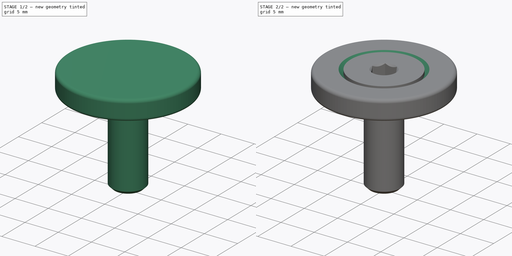
[diagram: build sequence overview — one tinted view per stage of 2, left to right]
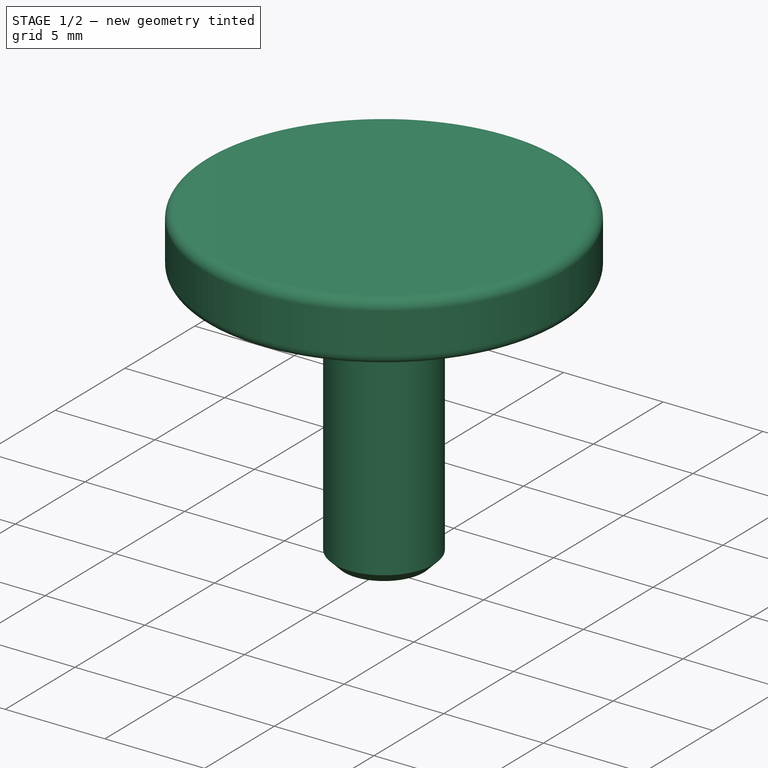
[diagram: stage 1 of 2 — iso view after this stage's code; geometry added in this stage tinted green]
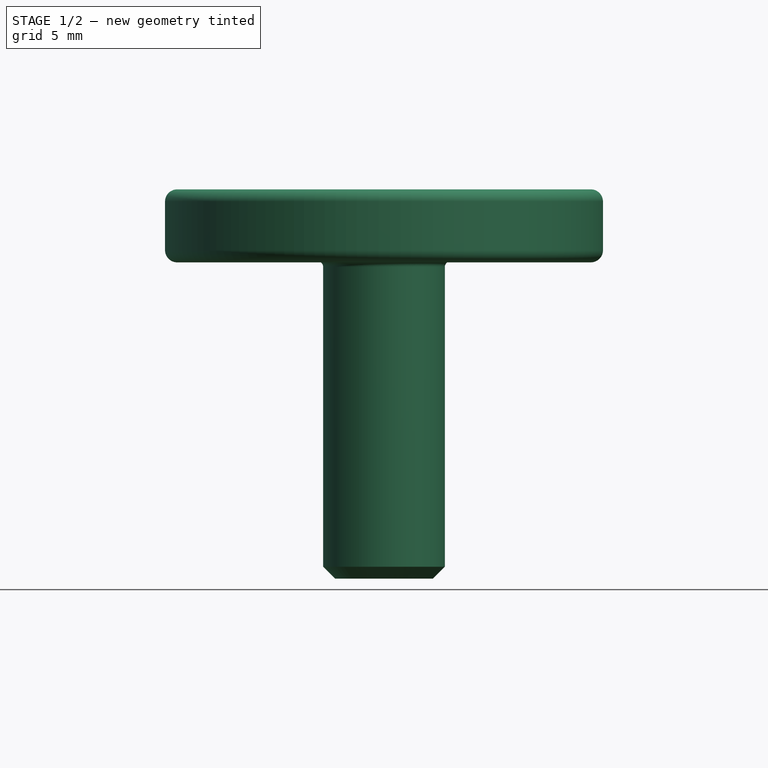
[diagram: stage 1 of 2 — front view after this stage's code; geometry added in this stage tinted green]
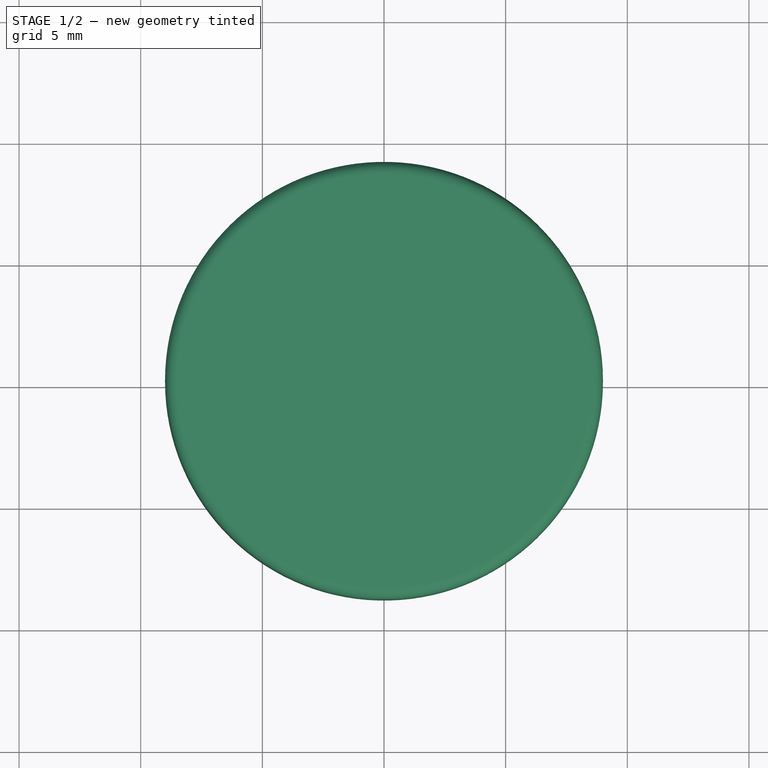
[diagram: stage 1 of 2 — top view after this stage's code; geometry added in this stage tinted green]
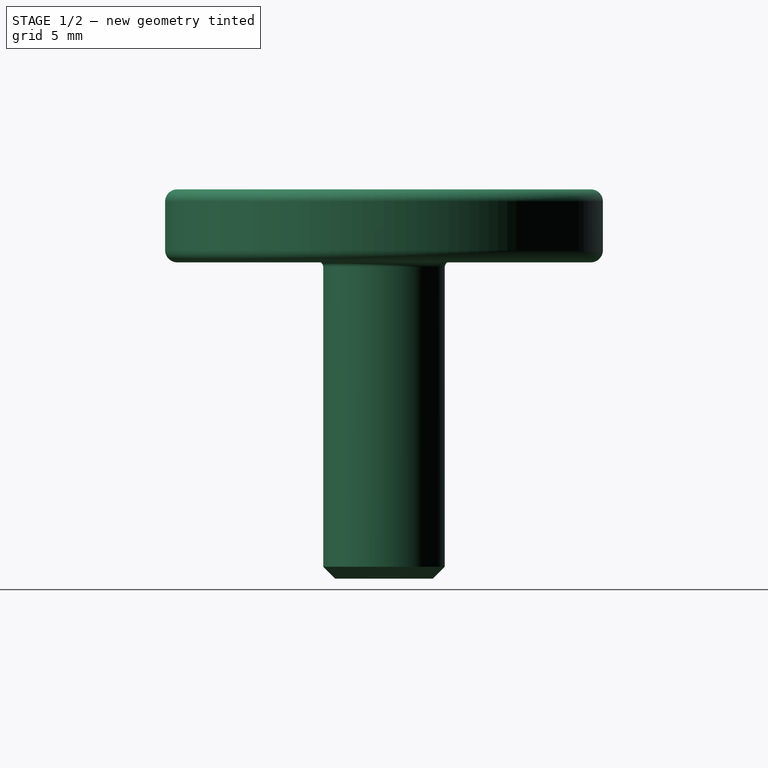
[diagram: stage 1 of 2 — right view after this stage's code; geometry added in this stage tinted green]
FCSTD DOCUMENT  (FreeCAD 0.20R29177 +426 (Git))
Label: BreakawayMagnet
License: All rights reserved
LicenseURL: http://en.wikipedia.org/wiki/All_rights_reserved
objects: App::DocumentObjectGroup×3, Sketcher::SketchObject×2, PartDesign::CoordinateSystem×1, App::FeaturePython×1, PartDesign::Revolution×1, PartDesign::Hole×1, PartDesign::Body×1, Part::FeaturePython×1, App::Part×1
note: 9 computed .brp shape members not serialized (recipe doc carries the construction recipe); baked Part::Feature solids carry a one-line shape summary decoded from their .brp

FEATURE [App::DocumentObjectGroup] Parts
FEATURE [PartDesign::CoordinateSystem] LCS_Origin
  AttacherType = Attacher::AttachEngine3D
  MapMode = 2
  Support = -> [X_Axis]
FEATURE [App::FeaturePython] Variables  # WARN: FeaturePython — macro-defined, semantics opaque (R4)
  Type = App::PropertyContainer
FEATURE [App::DocumentObjectGroup] Constraints
FEATURE [App::DocumentObjectGroup] Configurations
FEATURE [Sketcher::SketchObject] Sketch
  FullyConstrained = true
  MapMode = 5
  Placement = pos=(0,0,0) rot=(1,0,0;1.5708rad)
  Support = -> [XZ_Plane001]
  sketch-geometry (8):
    g0: LineSegment StartX=0 StartY=3 StartZ=0 EndX=8.5 EndY=3 EndZ=0
    g1: ArcOfCircle CenterX=8.5 CenterY=2.5 CenterZ=0 NormalX=0 NormalY=0 NormalZ=1 AngleXU=0 Radius=0.5 StartAngle=4.57e-14 EndAngle=1.5708
    g2: LineSegment StartX=9 StartY=2.5 StartZ=0 EndX=9 EndY=0.5 EndZ=0
    g3: ArcOfCircle CenterX=8.5 CenterY=0.5 CenterZ=0 NormalX=0 NormalY=0 NormalZ=1 AngleXU=0 Radius=0.5 StartAngle=4.71239 EndAngle=6.28319
    g4: LineSegment StartX=8.5 StartY=1e-16 StartZ=0 EndX=0 EndY=1e-16 EndZ=0
    g5: LineSegment StartX=0 StartY=1e-16 StartZ=0 EndX=0 EndY=3 EndZ=0
    g6: GeomPoint X=0 Y=3 Z=0
    g7: GeomPoint X=9 Y=0 Z=0
  constraints (19):
    c: Tangent(g0,g1) = 1.5708
    c: Tangent(g1,g2) = 1.5708
    c: Tangent(g2,g3) = 1.5708
    c: Tangent(g3,g4) = 1.5708
    c: Horizontal(g0)
    c: Horizontal(g4)
    c: Vertical(g2)
    c: Vertical(g5)
    c: Equal(g1,g3)
    c: PointOnObject(g6,g0)
    c: PointOnObject(g6,g5)
    c: PointOnObject(g7,g2)
    c: PointOnObject(g7,g4)
    c: Coincident(g5,g4)
    c: Coincident(g5,g0)
    c: Radius(g1) = 0.5
    c: DistanceY(g5,g5) = 3  'Height'
    c: DistanceX(g-1,g1) = 9
    c: Coincident(g4,g-1)
FEATURE [PartDesign::Revolution] Revolution
  Angle = 360
  Axis = (0,2e-16,1)
  Base = (0,0,0)
  Placement = pos=(0,0,0) rot=(1,0,0;1.5708rad)
  Profile = -> Sketch
  ReferenceAxis = -> Sketch [V_Axis]
  Reversed = true
FEATURE [PartDesign::Body] Body
  Group = -> [Sketch,Revolution,Sketch001,Hole]
  Origin = -> Origin001
  Tip = -> Hole
FEATURE [Part::FeaturePython] Screw  label="M5x16-Screw"  # Fasteners workbench fastener (typed FeaturePython)
  Placement = pos=(0,0,3) rot=(0,0,1;0rad)
  baseObject = -> Sketch001 [Edge1]
  diameter = 5
  invert = false
  leftHanded = false
  length = 3
  lengthCustom = 16
  matchOuter = false
  offset = 0
  thread = false
  type = 18
FEATURE [App::Part] Assembly
  AssemblyType = Part::Link
  Group = -> [LCS_Origin,Variables,Constraints,Configurations,Body,Screw]
  Origin = -> Origin
  Type = Assembly
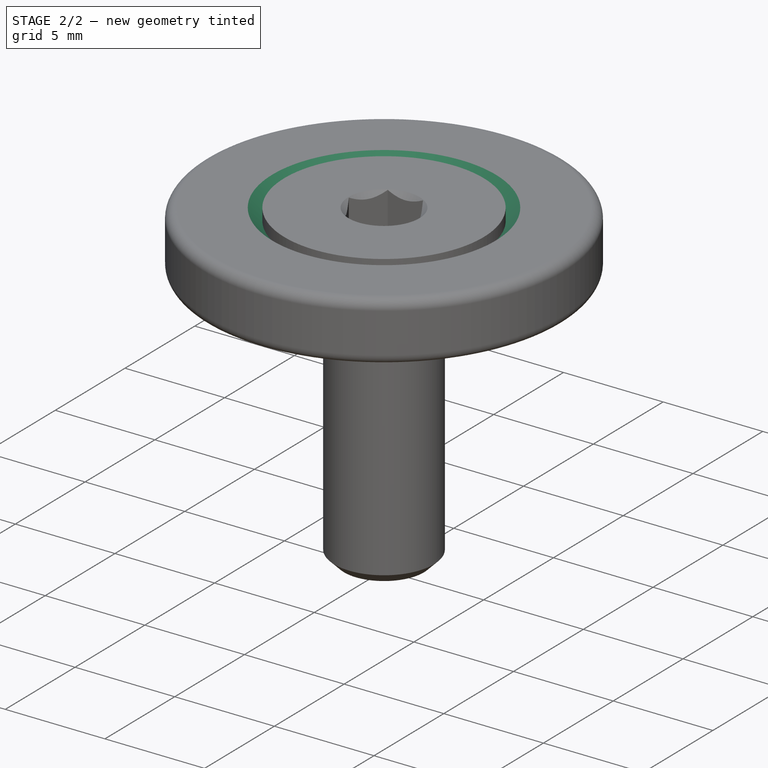
[diagram: stage 2 of 2 — iso view after this stage's code; geometry added in this stage tinted green]
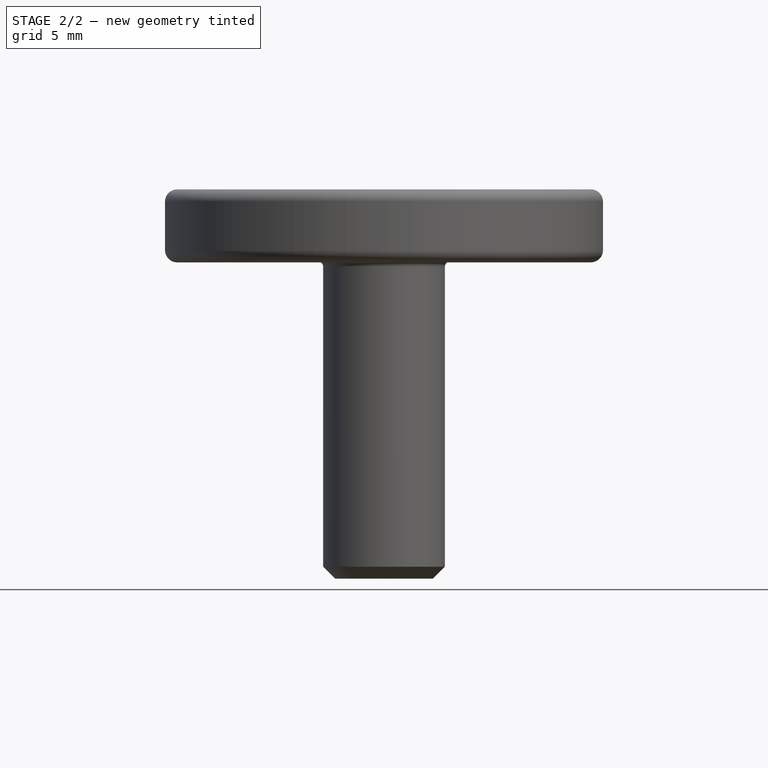
[diagram: stage 2 of 2 — front view after this stage's code; geometry added in this stage tinted green]
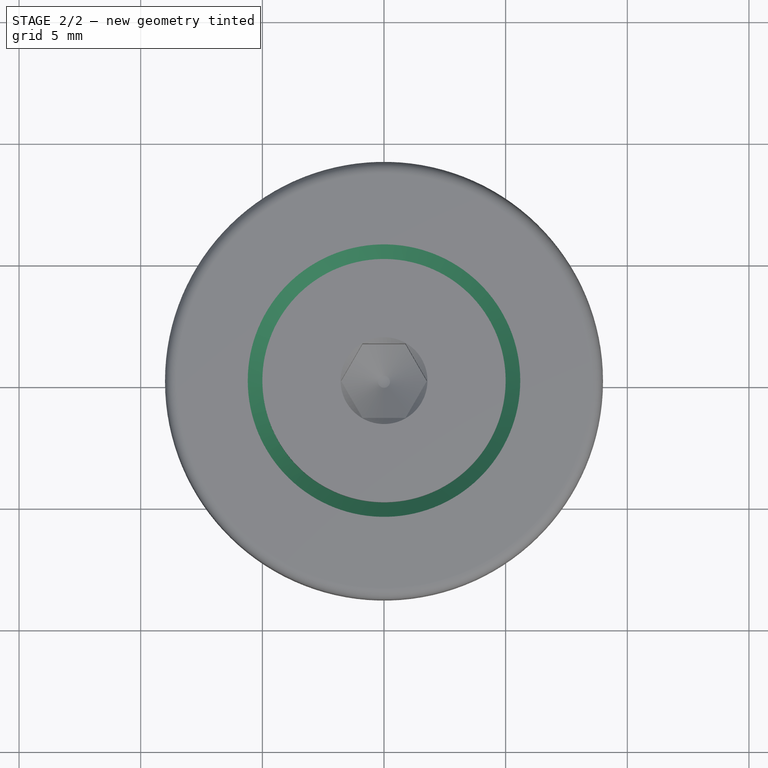
[diagram: stage 2 of 2 — top view after this stage's code; geometry added in this stage tinted green]
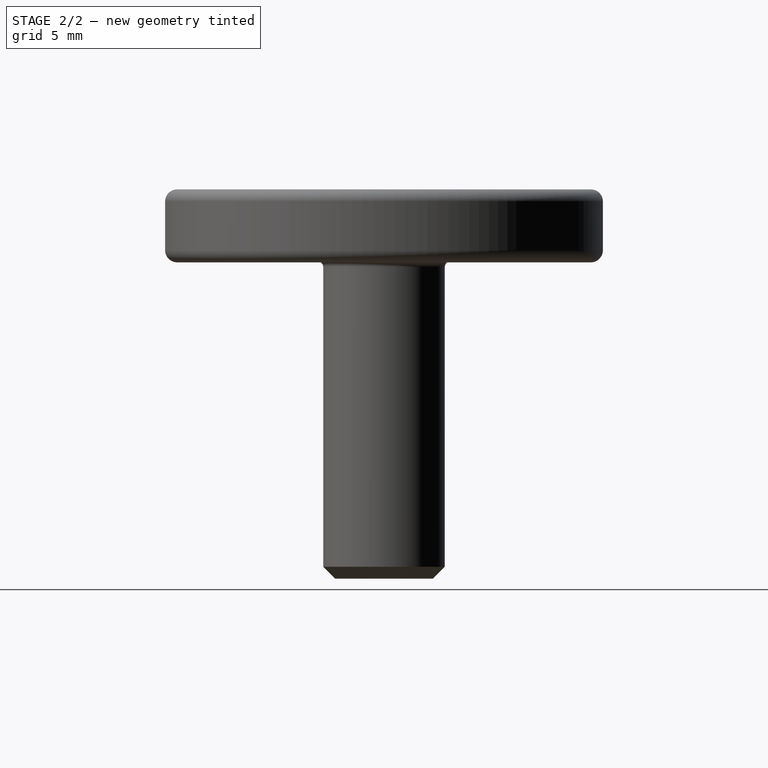
[diagram: stage 2 of 2 — right view after this stage's code; geometry added in this stage tinted green]
FEATURE [Sketcher::SketchObject] Sketch001
  AttachmentOffset = pos=(0,0,3) rot=(0,0,1;0rad)
  FullyConstrained = true
  MapMode = 5
  Placement = pos=(0,0,3) rot=(0,0,1;0rad)
  Support = -> [XY_Plane001]
  expr: .AttachmentOffset.Base.z = <<Sketch>>.Constraints.Height
  sketch-geometry (1):
    g0: Circle CenterX=0 CenterY=0 CenterZ=0 NormalX=0 NormalY=0 NormalZ=1 AngleXU=0 Radius=1
  constraints (2):
    c: Coincident(g0,g-1)
    c: Diameter(g0) = 2
FEATURE [PartDesign::Hole] Hole  label="MountHole"
  BaseFeature = -> Revolution
  CustomThreadClearance = 0
  Depth = 51.7403
  DepthType = 1
  Diameter = 5.5
  DrillForDepth = false
  DrillPoint = 1
  DrillPointAngle = 118
  HoleCutCountersinkAngle = 90
  HoleCutCustomValues = false
  HoleCutDepth = 3.5
  HoleCutDiameter = 12.2
  HoleCutType = 7
  ModelThread = false
  Placement = pos=(0,0,0) rot=(1,0,0;1.5708rad)
  Profile = -> Sketch001
  Tapered = false
  TaperedAngle = 90
  ThreadClass = 0
  ThreadDepth = 51.7403
  ThreadDepthType = 0
  ThreadDirection = 0
  ThreadFit = 0
  ThreadSize = 13
  ThreadType = 1
  Threaded = false
  UseCustomThreadClearance = false
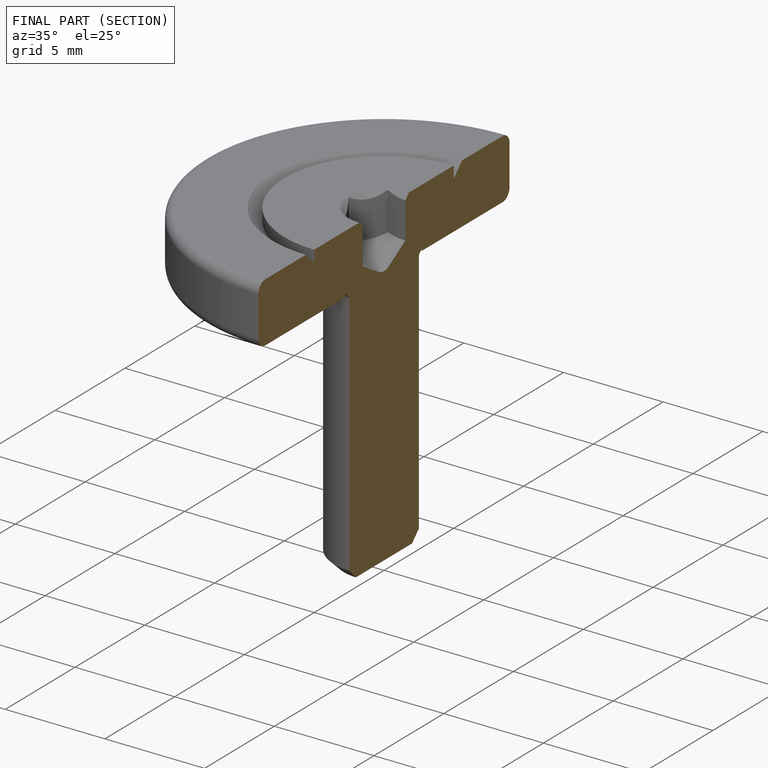
[diagram: finished part — half-section view (interior)]
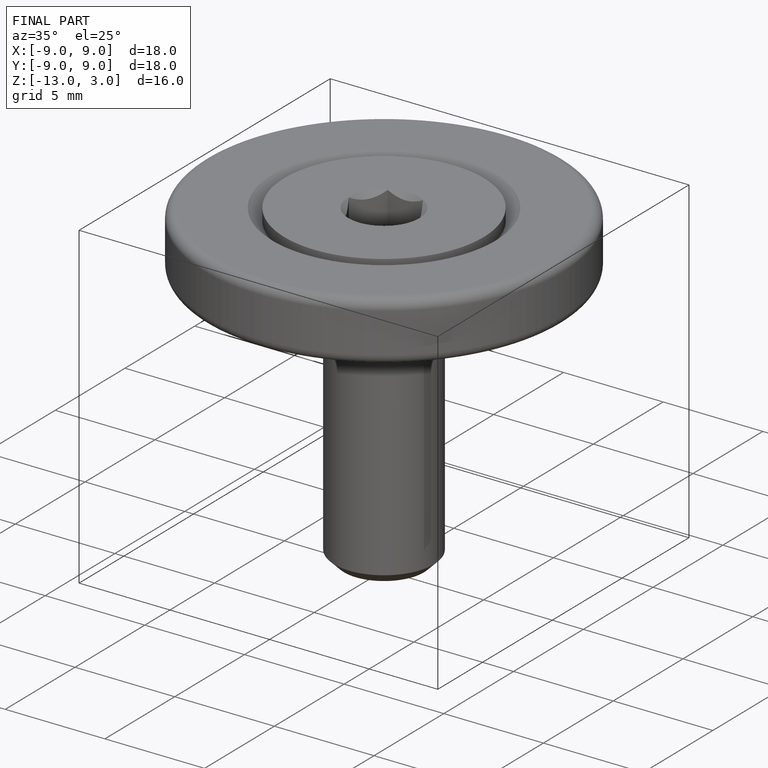
[diagram: finished part — iso view with bounding-box wireframe]
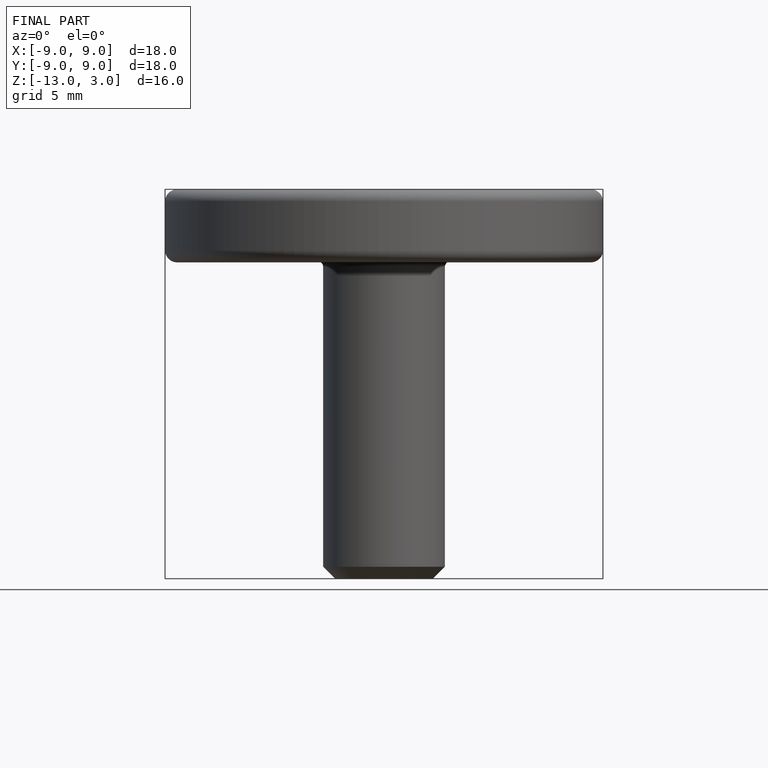
[diagram: finished part — front view with bounding-box wireframe]
